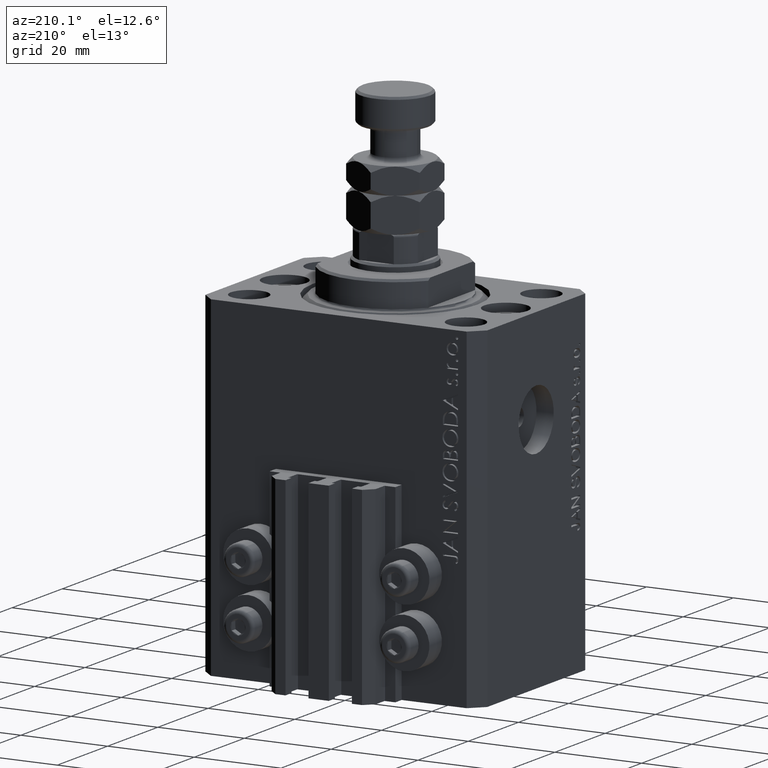
[diagram: clean part render]
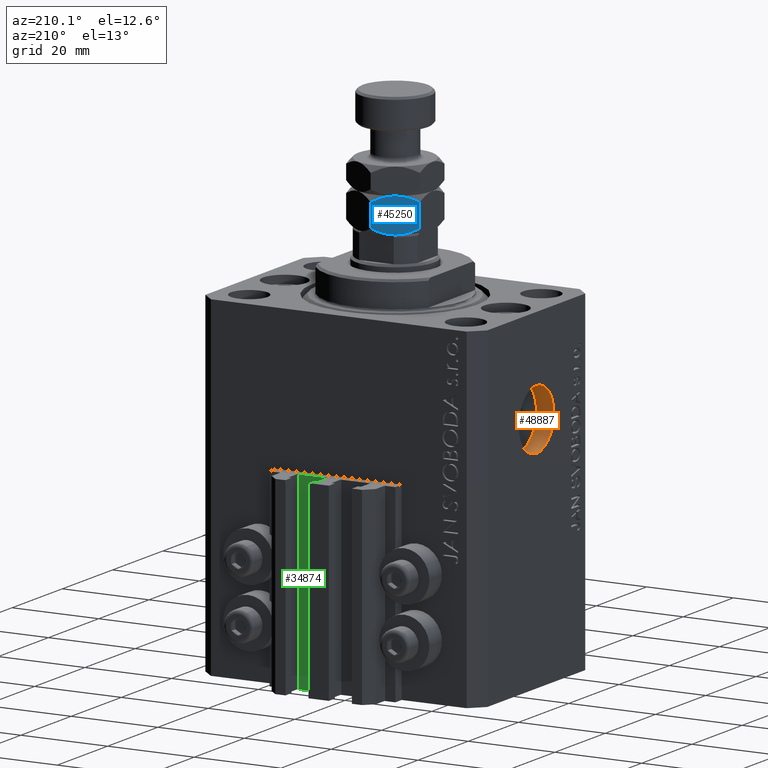
[diagram: same view with three faces highlighted in distinct colors, each labeled with its STEP entity id]
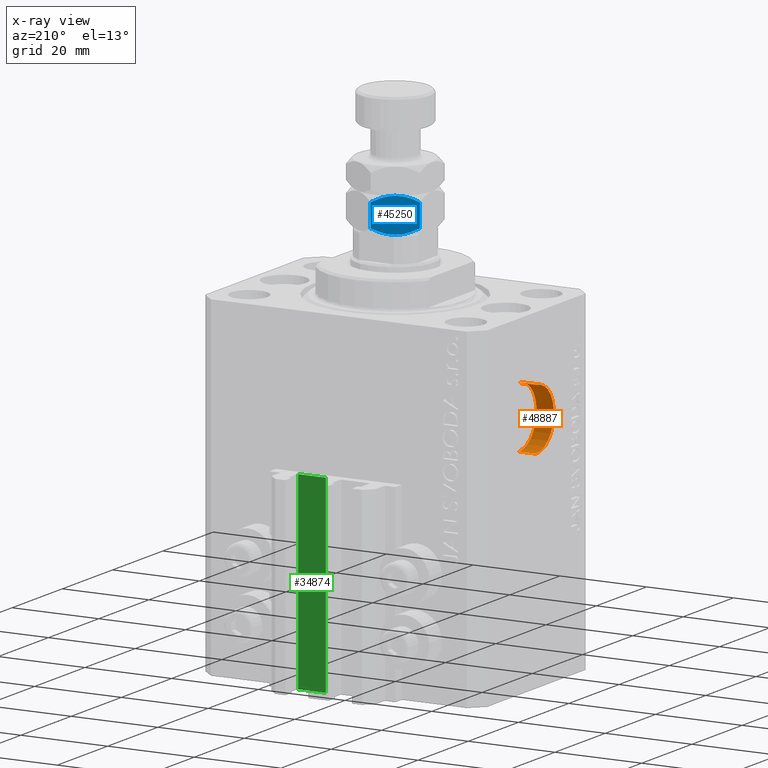
[diagram: x-ray of the same camera — body ghosted, the three highlighted faces saturated]
A machine part, auxiliary view with three faces highlighted in distinct colors.
The next image is the same camera in x-ray (body ghosted, the three faces saturated) — at least one of them is partly hidden behind the body in this view.
Their STEP definitions:

[orange] entity #48887 — the highlighted cylindrical surface (edge-blend (fillet) strip) has radius 7 mm, axis along (-1, -0, -0).
#1639 = VERTEX_POINT ( 'NONE', #44034 ) ;
#1831 = VECTOR ( 'NONE', #48723, 1000.000000000000000 ) ;
#1963 = ORIENTED_EDGE ( 'NONE', *, *, #17591, .F. ) ;
#7653 = CIRCLE ( 'NONE', #29105, 6.999999999999999112 ) ;
#8381 = CYLINDRICAL_SURFACE ( 'NONE', #29407, 6.999999999999999112 ) ;
#9122 = DIRECTION ( 'NONE',  ( -1.000000000000000000, -0.000000000000000000, -0.000000000000000000 ) ) ;
#9426 = EDGE_LOOP ( 'NONE', ( #16375, #45888, #36351, #1963 ) ) ;
#11629 = CARTESIAN_POINT ( 'NONE',  ( -32.49999999999650413, 0.000000000000000000, -15.00000000000000000 ) ) ;
#11718 = CARTESIAN_POINT ( 'NONE',  ( -32.49999999999650413, 0.000000000000000000, -22.00000000000000000 ) ) ;
#11783 = EDGE_CURVE ( 'NONE', #36026, #33531, #7653, .T. ) ;
#12031 = CARTESIAN_POINT ( 'NONE',  ( -28.49999999999650413, 0.000000000000000000, -15.00000000000000000 ) ) ;
#12909 = EDGE_CURVE ( 'NONE', #1639, #46935, #40493, .T. ) ;
#14387 = LINE ( 'NONE', #29467, #1831 ) ;
#16375 = ORIENTED_EDGE ( 'NONE', *, *, #12909, .F. ) ;
#17591 = EDGE_CURVE ( 'NONE', #46935, #33531, #14387, .T. ) ;
#20496 = CARTESIAN_POINT ( 'NONE',  ( -28.49999999999650413, 0.000000000000000000, -22.00000000000000000 ) ) ;
#21045 = VECTOR ( 'NONE', #47685, 1000.000000000000000 ) ;
#21460 = DIRECTION ( 'NONE',  ( 0.000000000000000000, 0.000000000000000000, 1.000000000000000000 ) ) ;
#24189 = DIRECTION ( 'NONE',  ( 0.000000000000000000, 0.000000000000000000, 1.000000000000000000 ) ) ;
#25409 = EDGE_CURVE ( 'NONE', #1639, #36026, #28428, .T. ) ;
#26796 = DIRECTION ( 'NONE',  ( 0.000000000000000000, 0.000000000000000000, 1.000000000000000000 ) ) ;
#28428 = LINE ( 'NONE', #43481, #21045 ) ;
#29105 = AXIS2_PLACEMENT_3D ( 'NONE', #11718, #46038, #26796 ) ;
#29407 = AXIS2_PLACEMENT_3D ( 'NONE', #31119, #9122, #24189 ) ;
#29467 = CARTESIAN_POINT ( 'NONE',  ( -28.49999999999650413, 0.000000000000000000, -15.00000000000000000 ) ) ;
#31119 = CARTESIAN_POINT ( 'NONE',  ( -28.49999999999650413, 0.000000000000000000, -22.00000000000000000 ) ) ;
#31869 = DIRECTION ( 'NONE',  ( -1.000000000000000000, 0.000000000000000000, 0.000000000000000000 ) ) ;
#33531 = VERTEX_POINT ( 'NONE', #11629 ) ;
#35788 = CARTESIAN_POINT ( 'NONE',  ( -32.49999999999650413, 8.572527594031474176E-16, -28.99999999999999645 ) ) ;
#36026 = VERTEX_POINT ( 'NONE', #35788 ) ;
#36351 = ORIENTED_EDGE ( 'NONE', *, *, #11783, .T. ) ;
#40493 = CIRCLE ( 'NONE', #42838, 6.999999999999999112 ) ;
#42462 = FACE_OUTER_BOUND ( 'NONE', #9426, .T. ) ;
#42838 = AXIS2_PLACEMENT_3D ( 'NONE', #20496, #31869, #21460 ) ;
#43481 = CARTESIAN_POINT ( 'NONE',  ( -28.49999999999650413, 8.572527594031473190E-16, -28.99999999999999645 ) ) ;
#44034 = CARTESIAN_POINT ( 'NONE',  ( -28.49999999999650413, 8.572527594031474176E-16, -28.99999999999999645 ) ) ;
#45888 = ORIENTED_EDGE ( 'NONE', *, *, #25409, .T. ) ;
#46038 = DIRECTION ( 'NONE',  ( -1.000000000000000000, 0.000000000000000000, 0.000000000000000000 ) ) ;
#46935 = VERTEX_POINT ( 'NONE', #12031 ) ;
#47685 = DIRECTION ( 'NONE',  ( -1.000000000000000000, -0.000000000000000000, -0.000000000000000000 ) ) ;
#48723 = DIRECTION ( 'NONE',  ( -1.000000000000000000, -0.000000000000000000, -0.000000000000000000 ) ) ;
#48887 = ADVANCED_FACE ( 'NONE', ( #42462 ), #8381, .F. ) ;

[blue] entity #45250 — the highlighted planar face has unit normal (0.5, -0.866, 0).
#283 = DIRECTION ( 'NONE',  ( -0.000000000000000000, -0.000000000000000000, -1.000000000000000000 ) ) ;
#2414 = CARTESIAN_POINT ( 'NONE',  ( -5.000029324638989081, 6.928186299687298266, 0.03373674959836554799 ) ) ;
#2575 = CARTESIAN_POINT ( 'NONE',  ( -5.715920793973915615, 6.514866167156221799, 7.869479712616790579 ) ) ;
#2680 = CARTESIAN_POINT ( 'NONE',  ( 1.960053746949402388E-16, 9.814954576223636096, 1.314954576223628546 ) ) ;
#3855 = B_SPLINE_CURVE_WITH_KNOTS ( 'NONE', 3,
 ( #31220, #20331, #16380, #20570, #47001, #5261, #12670, #35643 ),
 .UNSPECIFIED., .F., .F.,
 ( 4, 2, 2, 4 ),
 ( 2.544313836662431582E-07, 0.002543776790731950600, 0.003815537970406090908, 0.005087299150080232084 ),
 .UNSPECIFIED. ) ;
#4501 = B_SPLINE_CURVE_WITH_KNOTS ( 'NONE', 3,
 ( #43908, #25388, #10073, #17728, #6606, #2414, #21677, #5633 ),
 .UNSPECIFIED., .F., .F.,
 ( 4, 2, 2, 4 ),
 ( 2.544313836674336100E-07, 0.002543776790731957973, 0.003815537970406101317, 0.005087299150080244227 ),
 .UNSPECIFIED. ) ;
#4689 = ORIENTED_EDGE ( 'NONE', *, *, #37355, .F. ) ;
#5261 = CARTESIAN_POINT ( 'NONE',  ( -3.499970675361005590, 7.794245564648163871, 7.966263250401637741 ) ) ;
#5633 = CARTESIAN_POINT ( 'NONE',  ( -4.249999999999996447, 7.361215932167731957, 0.000000000000000000 ) ) ;
#5936 = ORIENTED_EDGE ( 'NONE', *, *, #10331, .F. ) ;
#6364 = DIRECTION ( 'NONE',  ( -0.000000000000000000, -0.000000000000000000, -1.000000000000000000 ) ) ;
#6606 = CARTESIAN_POINT ( 'NONE',  ( -5.733718739115173157, 6.504590518737894733, 0.1608217079418319817 ) ) ;
#6946 = CARTESIAN_POINT ( 'NONE',  ( -4.249999999999996447, 7.361215932167731957, 0.000000000000000000 ) ) ;
#7677 = CARTESIAN_POINT ( 'NONE',  ( -3.510754653168324246, 7.788019432158175270, -2.226002585384300502E-15 ) ) ;
#8774 = EDGE_CURVE ( 'NONE', #45705, #15725, #37356, .T. ) ;
#9370 = CARTESIAN_POINT ( 'NONE',  ( -4.249999999999994671, 7.361215932167727516, 8.000000000000000000 ) ) ;
#10073 = CARTESIAN_POINT ( 'NONE',  ( -7.151994807070144233, 5.685748449118888104, 0.6032092124201268168 ) ) ;
#10331 = EDGE_CURVE ( 'NONE', #15725, #48364, #4501, .T. ) ;
#10769 = ORIENTED_EDGE ( 'NONE', *, *, #26968, .F. ) ;
#11377 = CARTESIAN_POINT ( 'NONE',  ( -1.350892646810552433, 9.035016342941277756, 0.6009384127361191430 ) ) ;
#11929 = AXIS2_PLACEMENT_3D ( 'NONE', #30718, #38611, #31687 ) ;
#11997 = B_SPLINE_CURVE_WITH_KNOTS ( 'NONE', 3,
 ( #6946, #7677, #41032, #11377, #44966, #40786 ),
 .UNSPECIFIED., .F., .F.,
 ( 4, 2, 4 ),
 ( 0.005087299150080244227, 0.007613005268011861781, 0.01013871138594347847 ),
 .UNSPECIFIED. ) ;
#12116 = CARTESIAN_POINT ( 'NONE',  ( -8.500000000000001776, 4.907477288111821601, 1.314954576223634097 ) ) ;
#12670 = CARTESIAN_POINT ( 'NONE',  ( -3.877770021349439045, 7.576123010542077374, 8.000000000000001776 ) ) ;
#13935 = CARTESIAN_POINT ( 'NONE',  ( -8.500000000000001776, 4.907477288111821601, 6.685045423776368345 ) ) ;
#14769 = CARTESIAN_POINT ( 'NONE',  ( 0.000000000000000000, 9.814954576223636096, 8.000000000000000000 ) ) ;
#15725 = VERTEX_POINT ( 'NONE', #12116 ) ;
#16380 = CARTESIAN_POINT ( 'NONE',  ( -1.348005192929855323, 9.036683415216572257, 7.396790787579877069 ) ) ;
#16610 = FACE_OUTER_BOUND ( 'NONE', #45226, .T. ) ;
#17728 = CARTESIAN_POINT ( 'NONE',  ( -6.092930036521920556, 6.297199779484152771, 0.2536240893246534123 ) ) ;
#18576 = CARTESIAN_POINT ( 'NONE',  ( -8.500000000000001776, 4.907477288111821601, 8.000000000000000000 ) ) ;
#19818 = PLANE ( 'NONE',  #11929 ) ;
#20331 = CARTESIAN_POINT ( 'NONE',  ( -0.6664608216042845479, 9.430173241466064837, 7.069826758533944044 ) ) ;
#20570 = CARTESIAN_POINT ( 'NONE',  ( -2.407069963478076779, 8.425232084851307590, 7.746375910675348919 ) ) ;
#21677 = CARTESIAN_POINT ( 'NONE',  ( -4.622229978650556070, 7.146308853793382987, -2.126899730555548151E-15 ) ) ;
#22334 = EDGE_CURVE ( 'NONE', #24965, #26530, #40212, .T. ) ;
#23514 = B_SPLINE_CURVE_WITH_KNOTS ( 'NONE', 3,
 ( #44556, #40856, #2575, #32711, #47779, #13935 ),
 .UNSPECIFIED., .F., .F.,
 ( 4, 2, 4 ),
 ( 0.005087299150080232084, 0.007613005268011854842, 0.01013871138594347847 ),
 .UNSPECIFIED. ) ;
#24780 = CARTESIAN_POINT ( 'NONE',  ( -2.175848833159079736E-16, 9.814954576223636096, 6.685045423776372786 ) ) ;
#24965 = VERTEX_POINT ( 'NONE', #24780 ) ;
#25388 = CARTESIAN_POINT ( 'NONE',  ( -7.833539178395718672, 5.292258622869395523, 0.9301732414660626169 ) ) ;
#26530 = VERTEX_POINT ( 'NONE', #2680 ) ;
#26968 = EDGE_CURVE ( 'NONE', #48364, #26530, #11997, .T. ) ;
#27133 = VECTOR ( 'NONE', #283, 1000.000000000000000 ) ;
#27203 = ORIENTED_EDGE ( 'NONE', *, *, #42513, .F. ) ;
#27891 = ORIENTED_EDGE ( 'NONE', *, *, #22334, .T. ) ;
#30718 = CARTESIAN_POINT ( 'NONE',  ( 0.000000000000000000, 9.814954576223636096, 8.000000000000000000 ) ) ;
#31220 = CARTESIAN_POINT ( 'NONE',  ( -2.175848833159079736E-16, 9.814954576223636096, 6.685045423776372786 ) ) ;
#31687 = DIRECTION ( 'NONE',  ( 0.8660254037844389297, 0.4999999999999995559, 0.000000000000000000 ) ) ;
#32711 = CARTESIAN_POINT ( 'NONE',  ( -7.149107353189443792, 5.687415521394179940, 7.399061587263880746 ) ) ;
#34945 = CARTESIAN_POINT ( 'NONE',  ( -4.249999999999996447, 7.361215932167731957, 0.000000000000000000 ) ) ;
#35643 = CARTESIAN_POINT ( 'NONE',  ( -4.249999999999994671, 7.361215932167727516, 8.000000000000000000 ) ) ;
#37355 = EDGE_CURVE ( 'NONE', #24965, #41080, #3855, .T. ) ;
#37356 = LINE ( 'NONE', #18576, #27133 ) ;
#38282 = CARTESIAN_POINT ( 'NONE',  ( -8.500000000000001776, 4.907477288111821601, 6.685045423776368345 ) ) ;
#38611 = DIRECTION ( 'NONE',  ( 0.4999999999999995559, -0.8660254037844389297, 0.000000000000000000 ) ) ;
#39846 = VECTOR ( 'NONE', #6364, 1000.000000000000000 ) ;
#40212 = LINE ( 'NONE', #14769, #39846 ) ;
#40786 = CARTESIAN_POINT ( 'NONE',  ( 1.960053746949402388E-16, 9.814954576223636096, 1.314954576223628546 ) ) ;
#40856 = CARTESIAN_POINT ( 'NONE',  ( -4.989245346831672201, 6.934412432177284202, 8.000000000000005329 ) ) ;
#41032 = CARTESIAN_POINT ( 'NONE',  ( -2.784079206026081721, 8.207565697179243003, 0.1305202873832130295 ) ) ;
#41080 = VERTEX_POINT ( 'NONE', #9370 ) ;
#42513 = EDGE_CURVE ( 'NONE', #41080, #45705, #23514, .T. ) ;
#43908 = CARTESIAN_POINT ( 'NONE',  ( -8.500000000000001776, 4.907477288111821601, 1.314954576223634097 ) ) ;
#44556 = CARTESIAN_POINT ( 'NONE',  ( -4.249999999999994671, 7.361215932167727516, 8.000000000000000000 ) ) ;
#44966 = CARTESIAN_POINT ( 'NONE',  ( -0.6656893889372521578, 9.430618628324037189, 0.9306186283239277213 ) ) ;
#45226 = EDGE_LOOP ( 'NONE', ( #5936, #47954, #27203, #4689, #27891, #10769 ) ) ;
#45250 = ADVANCED_FACE ( 'NONE', ( #16610 ), #19818, .F. ) ;
#45705 = VERTEX_POINT ( 'NONE', #38282 ) ;
#47001 = CARTESIAN_POINT ( 'NONE',  ( -2.766281260884825510, 8.217841345597568292, 7.839178292058173625 ) ) ;
#47779 = CARTESIAN_POINT ( 'NONE',  ( -7.834310611062749174, 5.291813236011422283, 7.069381371676069392 ) ) ;
#47954 = ORIENTED_EDGE ( 'NONE', *, *, #8774, .F. ) ;
#48364 = VERTEX_POINT ( 'NONE', #34945 ) ;

[green] entity #34874 — the highlighted planar face has unit normal (0, 1, 0).
#2535 = CARTESIAN_POINT ( 'NONE',  ( 8.200000000000001066, 24.49999999999949196, -77.00000000000000000 ) ) ;
#3986 = EDGE_CURVE ( 'NONE', #45603, #37353, #29905, .T. ) ;
#4918 = LINE ( 'NONE', #42465, #6360 ) ;
#5344 = CARTESIAN_POINT ( 'NONE',  ( 8.200000000000001066, 24.49999999999949196, -77.00000000000000000 ) ) ;
#6360 = VECTOR ( 'NONE', #45442, 1000.000000000000000 ) ;
#6928 = CARTESIAN_POINT ( 'NONE',  ( 8.200000000000001066, 24.49999999999949196, -33.00000000000000000 ) ) ;
#7003 = LINE ( 'NONE', #25786, #29373 ) ;
#8017 = CARTESIAN_POINT ( 'NONE',  ( 8.200000000000001066, 24.49999999999949196, -77.00000000000000000 ) ) ;
#9298 = LINE ( 'NONE', #5344, #18449 ) ;
#10496 = ORIENTED_EDGE ( 'NONE', *, *, #19428, .F. ) ;
#11209 = ORIENTED_EDGE ( 'NONE', *, *, #47658, .T. ) ;
#11829 = CARTESIAN_POINT ( 'NONE',  ( 1.800000000000000933, 24.49999999999949196, -77.00000000000000000 ) ) ;
#11957 = ORIENTED_EDGE ( 'NONE', *, *, #39600, .T. ) ;
#13372 = CARTESIAN_POINT ( 'NONE',  ( 8.200000000000001066, 24.49999999999949196, -33.00000000000000000 ) ) ;
#14142 = PLANE ( 'NONE',  #38574 ) ;
#18449 = VECTOR ( 'NONE', #21134, 1000.000000000000000 ) ;
#19428 = EDGE_CURVE ( 'NONE', #22881, #45603, #9298, .T. ) ;
#21134 = DIRECTION ( 'NONE',  ( 0.000000000000000000, 0.000000000000000000, 1.000000000000000000 ) ) ;
#21213 = VERTEX_POINT ( 'NONE', #11829 ) ;
#22041 = DIRECTION ( 'NONE',  ( 0.000000000000000000, 0.000000000000000000, 1.000000000000000000 ) ) ;
#22071 = DIRECTION ( 'NONE',  ( 0.000000000000000000, 0.000000000000000000, 1.000000000000000000 ) ) ;
#22881 = VERTEX_POINT ( 'NONE', #8017 ) ;
#24162 = ORIENTED_EDGE ( 'NONE', *, *, #3986, .F. ) ;
#25224 = DIRECTION ( 'NONE',  ( -1.000000000000000000, 0.000000000000000000, 0.000000000000000000 ) ) ;
#25758 = DIRECTION ( 'NONE',  ( 0.000000000000000000, 1.000000000000000000, -0.000000000000000000 ) ) ;
#25786 = CARTESIAN_POINT ( 'NONE',  ( 1.800000000000000933, 24.49999999999949196, -77.00000000000000000 ) ) ;
#29373 = VECTOR ( 'NONE', #22071, 1000.000000000000000 ) ;
#29905 = LINE ( 'NONE', #6928, #46871 ) ;
#31457 = CARTESIAN_POINT ( 'NONE',  ( 1.800000000000000933, 24.49999999999949196, -33.00000000000000000 ) ) ;
#34874 = ADVANCED_FACE ( 'NONE', ( #43780 ), #14142, .T. ) ;
#37353 = VERTEX_POINT ( 'NONE', #31457 ) ;
#37432 = EDGE_LOOP ( 'NONE', ( #24162, #10496, #11957, #11209 ) ) ;
#38574 = AXIS2_PLACEMENT_3D ( 'NONE', #2535, #25758, #22041 ) ;
#39600 = EDGE_CURVE ( 'NONE', #22881, #21213, #4918, .T. ) ;
#42465 = CARTESIAN_POINT ( 'NONE',  ( 8.200000000000001066, 24.49999999999949196, -77.00000000000000000 ) ) ;
#43780 = FACE_OUTER_BOUND ( 'NONE', #37432, .T. ) ;
#45442 = DIRECTION ( 'NONE',  ( -1.000000000000000000, 0.000000000000000000, 0.000000000000000000 ) ) ;
#45603 = VERTEX_POINT ( 'NONE', #13372 ) ;
#46871 = VECTOR ( 'NONE', #25224, 1000.000000000000000 ) ;
#47658 = EDGE_CURVE ( 'NONE', #21213, #37353, #7003, .T. ) ;